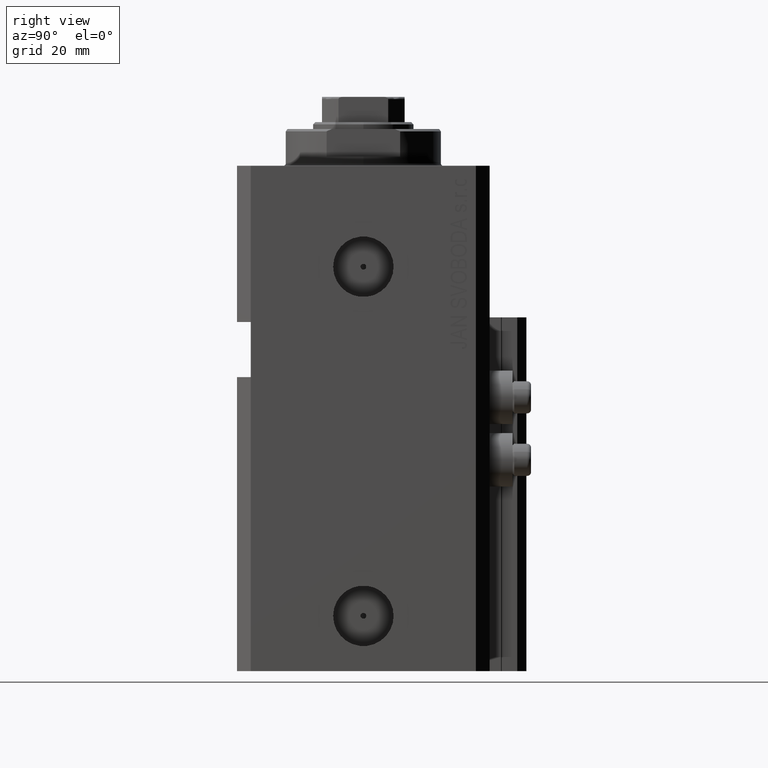
[diagram: clean part render]
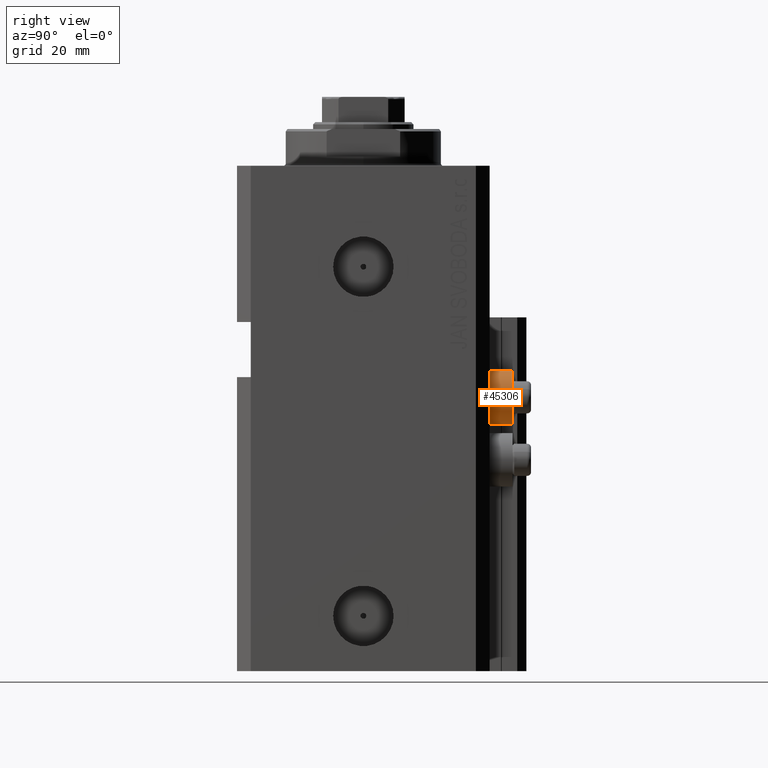
[diagram: same view with one face highlighted and labeled with its STEP entity id]
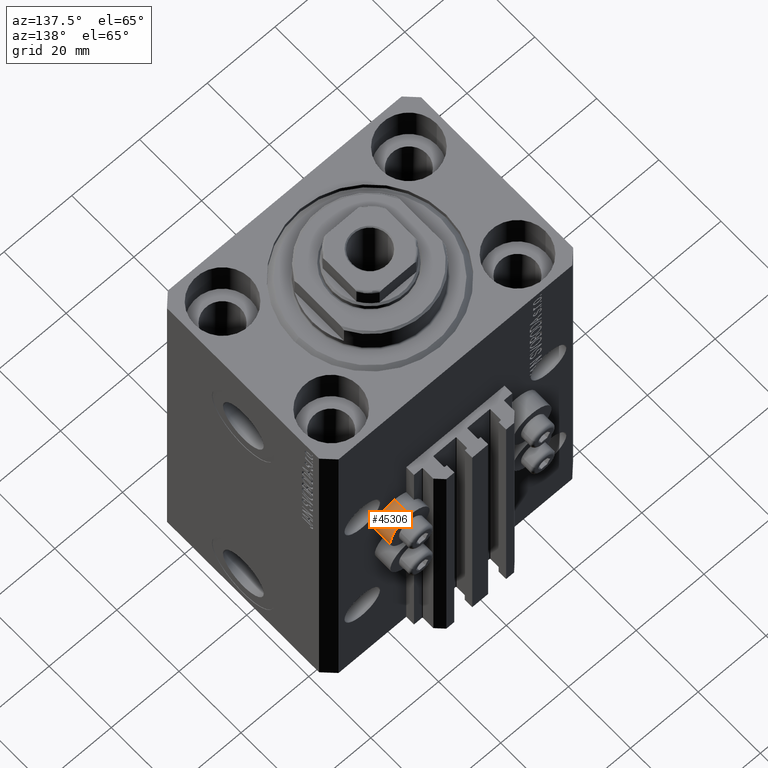
[diagram: same view with one face highlighted and labeled with its STEP entity id]
A machine part, right view. The second image highlights one B-rep face of the part: STEP entity #45306.
A second angle (auxiliary view) of the same face is appended — the face is thin or edge-on in the first view.
In plain terms, the highlighted cylindrical surface (edge-blend (fillet) strip) has radius 5.8 mm, axis along (0, 1, 0).
Its self-contained STEP definition (entity closure, byte-faithful):
#593 = LINE ( 'NONE', #15607, #7331 ) ;
#1923 = CIRCLE ( 'NONE', #28231, 5.799999999999999822 ) ;
#4303 = AXIS2_PLACEMENT_3D ( 'NONE', #16790, #24053, #35200 ) ;
#4396 = CARTESIAN_POINT ( 'NONE',  ( 18.00000000000000355, 32.49999999996100541, -56.20000000000000284 ) ) ;
#7331 = VECTOR ( 'NONE', #41060, 1000.000000000000000 ) ;
#8317 = ORIENTED_EDGE ( 'NONE', *, *, #35878, .F. ) ;
#9990 = CYLINDRICAL_SURFACE ( 'NONE', #4303, 5.799999999999999822 ) ;
#10404 = DIRECTION ( 'NONE',  ( 0.000000000000000000, 1.000000000000000000, 0.000000000000000000 ) ) ;
#11362 = LINE ( 'NONE', #33381, #38666 ) ;
#12488 = VERTEX_POINT ( 'NONE', #4396 ) ;
#14313 = ORIENTED_EDGE ( 'NONE', *, *, #39080, .F. ) ;
#14638 = EDGE_CURVE ( 'NONE', #24335, #12488, #11362, .T. ) ;
#15607 = CARTESIAN_POINT ( 'NONE',  ( 18.00000000000000355, 32.49999999996100541, -44.60000000000000142 ) ) ;
#16790 = CARTESIAN_POINT ( 'NONE',  ( 18.00000000000000355, 32.49999999996100541, -50.39999999999999858 ) ) ;
#19583 = CIRCLE ( 'NONE', #38923, 5.799999999999999822 ) ;
#20489 = DIRECTION ( 'NONE',  ( -0.000000000000000000, -1.000000000000000000, -0.000000000000000000 ) ) ;
#21537 = DIRECTION ( 'NONE',  ( -0.000000000000000000, -1.000000000000000000, -0.000000000000000000 ) ) ;
#22659 = CARTESIAN_POINT ( 'NONE',  ( 18.00000000000000355, 27.50000000000000355, -44.60000000000000142 ) ) ;
#24053 = DIRECTION ( 'NONE',  ( 0.000000000000000000, 1.000000000000000000, 0.000000000000000000 ) ) ;
#24335 = VERTEX_POINT ( 'NONE', #29087 ) ;
#26232 = EDGE_LOOP ( 'NONE', ( #8317, #42177, #38300, #14313 ) ) ;
#28231 = AXIS2_PLACEMENT_3D ( 'NONE', #38679, #20489, #42550 ) ;
#29087 = CARTESIAN_POINT ( 'NONE',  ( 18.00000000000000355, 27.50000000000000355, -56.20000000000000284 ) ) ;
#33381 = CARTESIAN_POINT ( 'NONE',  ( 18.00000000000000355, 32.49999999996100541, -56.20000000000000284 ) ) ;
#35200 = DIRECTION ( 'NONE',  ( 0.000000000000000000, 0.000000000000000000, 1.000000000000000000 ) ) ;
#35878 = EDGE_CURVE ( 'NONE', #24335, #43001, #19583, .T. ) ;
#37858 = VERTEX_POINT ( 'NONE', #38425 ) ;
#38300 = ORIENTED_EDGE ( 'NONE', *, *, #39728, .T. ) ;
#38425 = CARTESIAN_POINT ( 'NONE',  ( 18.00000000000000355, 32.49999999996100541, -44.60000000000000142 ) ) ;
#38666 = VECTOR ( 'NONE', #10404, 1000.000000000000000 ) ;
#38679 = CARTESIAN_POINT ( 'NONE',  ( 18.00000000000000355, 32.49999999996100541, -50.39999999999999858 ) ) ;
#38923 = AXIS2_PLACEMENT_3D ( 'NONE', #40427, #21537, #47687 ) ;
#39080 = EDGE_CURVE ( 'NONE', #43001, #37858, #593, .T. ) ;
#39728 = EDGE_CURVE ( 'NONE', #12488, #37858, #1923, .T. ) ;
#40427 = CARTESIAN_POINT ( 'NONE',  ( 18.00000000000000355, 27.50000000000000355, -50.39999999999999858 ) ) ;
#41060 = DIRECTION ( 'NONE',  ( 0.000000000000000000, 1.000000000000000000, 0.000000000000000000 ) ) ;
#42177 = ORIENTED_EDGE ( 'NONE', *, *, #14638, .T. ) ;
#42550 = DIRECTION ( 'NONE',  ( 0.000000000000000000, 0.000000000000000000, 1.000000000000000000 ) ) ;
#43001 = VERTEX_POINT ( 'NONE', #22659 ) ;
#45130 = FACE_OUTER_BOUND ( 'NONE', #26232, .T. ) ;
#45306 = ADVANCED_FACE ( 'NONE', ( #45130 ), #9990, .T. ) ;
#47687 = DIRECTION ( 'NONE',  ( 0.000000000000000000, 0.000000000000000000, 1.000000000000000000 ) ) ;